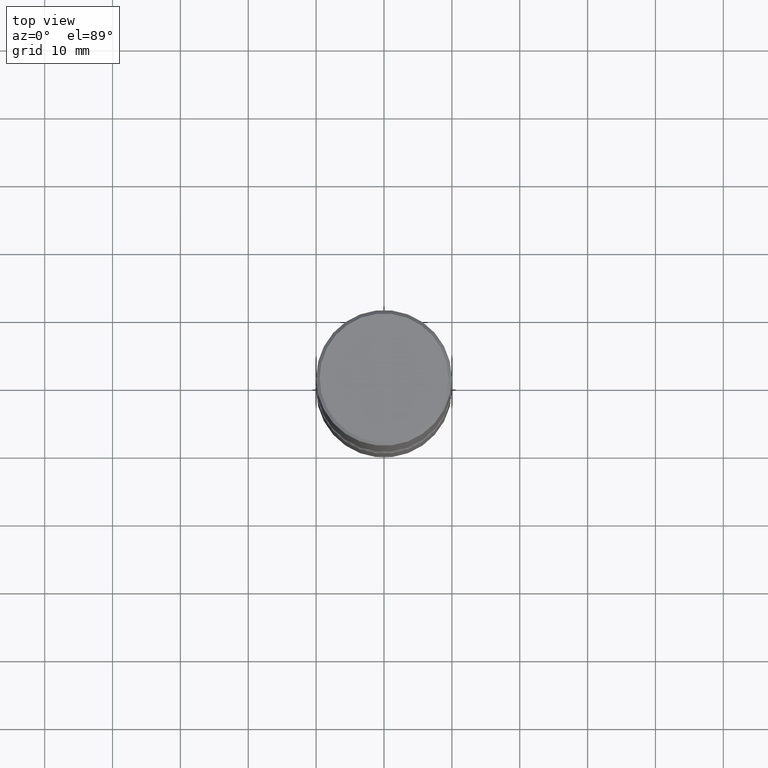
[diagram: clean part render]
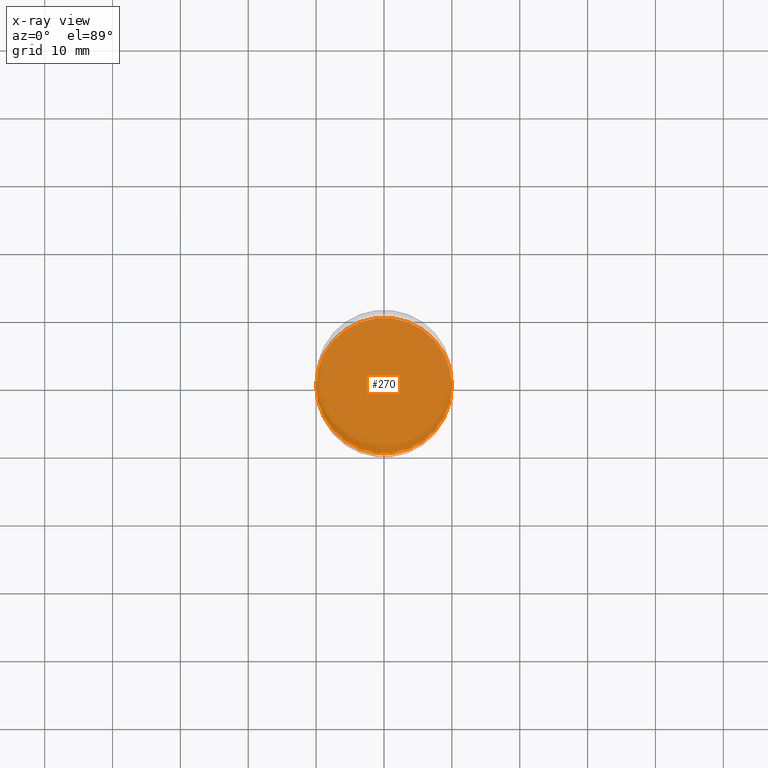
[diagram: x-ray — body ghosted, one internal face saturated and labeled with its STEP entity id]
A machine part, top view, then the same camera in x-ray: the body is ghosted and one INTERNAL B-rep face — a face not visible from any outside direction — is saturated and labeled: STEP entity #270.
In plain terms, the highlighted planar face has unit normal (0, -0, -1).
Its self-contained STEP definition (entity closure, byte-faithful):
#18 = CIRCLE ( 'NONE', #173, 0.3937000000000002164 ) ;
#28 = CARTESIAN_POINT ( 'NONE',  ( 6.354306145991457514E-29, -9.072265110850029467E-15, -2.598399999999999821 ) ) ;
#81 = EDGE_CURVE ( 'NONE', #162, #109, #18, .T. ) ;
#97 = PLANE ( 'NONE',  #296 ) ;
#100 = EDGE_LOOP ( 'NONE', ( #164, #285 ) ) ;
#109 = VERTEX_POINT ( 'NONE', #335 ) ;
#136 = CARTESIAN_POINT ( 'NONE',  ( -0.3937000000000002164, -8.611706820250229288E-15, -2.598399999999999821 ) ) ;
#162 = VERTEX_POINT ( 'NONE', #136 ) ;
#164 = ORIENTED_EDGE ( 'NONE', *, *, #185, .T. ) ;
#173 = AXIS2_PLACEMENT_3D ( 'NONE', #28, #200, #546 ) ;
#185 = EDGE_CURVE ( 'NONE', #109, #162, #214, .T. ) ;
#186 = DIRECTION ( 'NONE',  ( 2.438088387897960049E-29, -3.491481338843145188E-15, -1.000000000000000000 ) ) ;
#195 = DIRECTION ( 'NONE',  ( -2.445468806185136597E-29, 3.491481338843145583E-15, 1.000000000000000000 ) ) ;
#200 = DIRECTION ( 'NONE',  ( -2.445468806185136597E-29, 3.491481338843145583E-15, 1.000000000000000000 ) ) ;
#214 = CIRCLE ( 'NONE', #533, 0.3937000000000002164 ) ;
#227 = CARTESIAN_POINT ( 'NONE',  ( 8.872370585012628009E-29, -5.466253514844332683E-15, -2.598400000000000265 ) ) ;
#270 = ADVANCED_FACE ( 'NONE', ( #528 ), #97, .F. ) ;
#285 = ORIENTED_EDGE ( 'NONE', *, *, #81, .T. ) ;
#296 = AXIS2_PLACEMENT_3D ( 'NONE', #227, #186, #525 ) ;
#335 = CARTESIAN_POINT ( 'NONE',  ( 0.3937000000000002164, -1.182145751705511584E-14, -2.598399999999999821 ) ) ;
#507 = DIRECTION ( 'NONE',  ( 1.000000000000000000, -6.982962677686269866E-15, 0.000000000000000000 ) ) ;
#525 = DIRECTION ( 'NONE',  ( -1.000000000000000000, 6.982962677686265922E-15, -4.876176775795935793E-29 ) ) ;
#528 = FACE_OUTER_BOUND ( 'NONE', #100, .T. ) ;
#530 = CARTESIAN_POINT ( 'NONE',  ( 6.354306145991457514E-29, -9.072265110850029467E-15, -2.598399999999999821 ) ) ;
#533 = AXIS2_PLACEMENT_3D ( 'NONE', #530, #195, #507 ) ;
#546 = DIRECTION ( 'NONE',  ( 1.000000000000000000, -6.982962677686269866E-15, 0.000000000000000000 ) ) ;